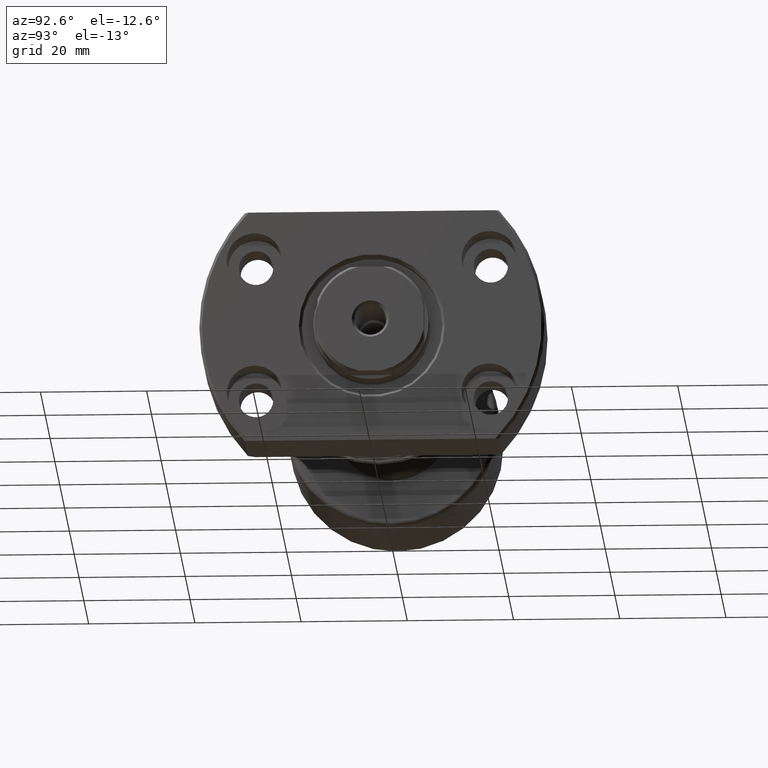
[diagram: clean part render]
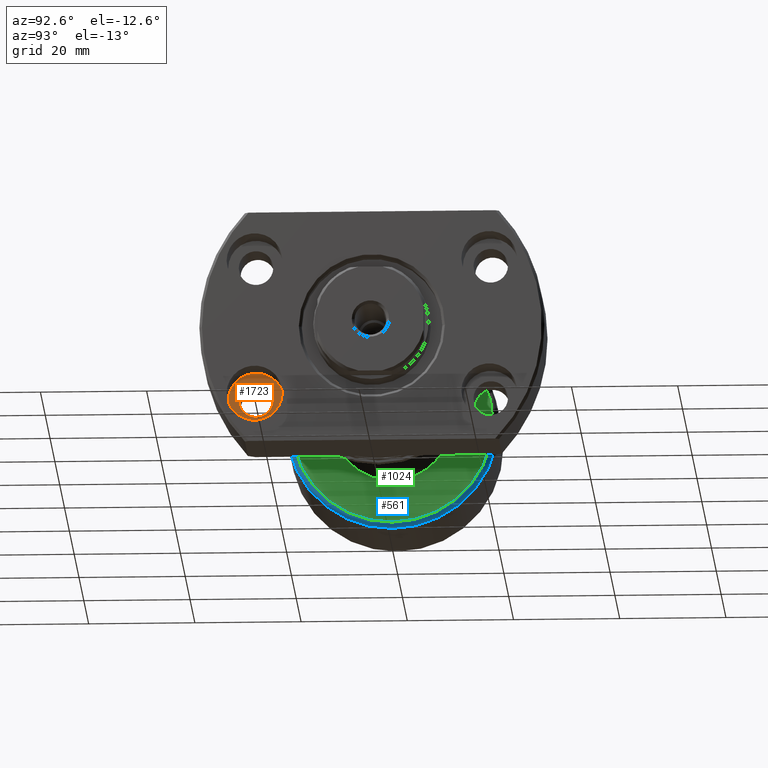
[diagram: same view with three faces highlighted in distinct colors, each labeled with its STEP entity id]
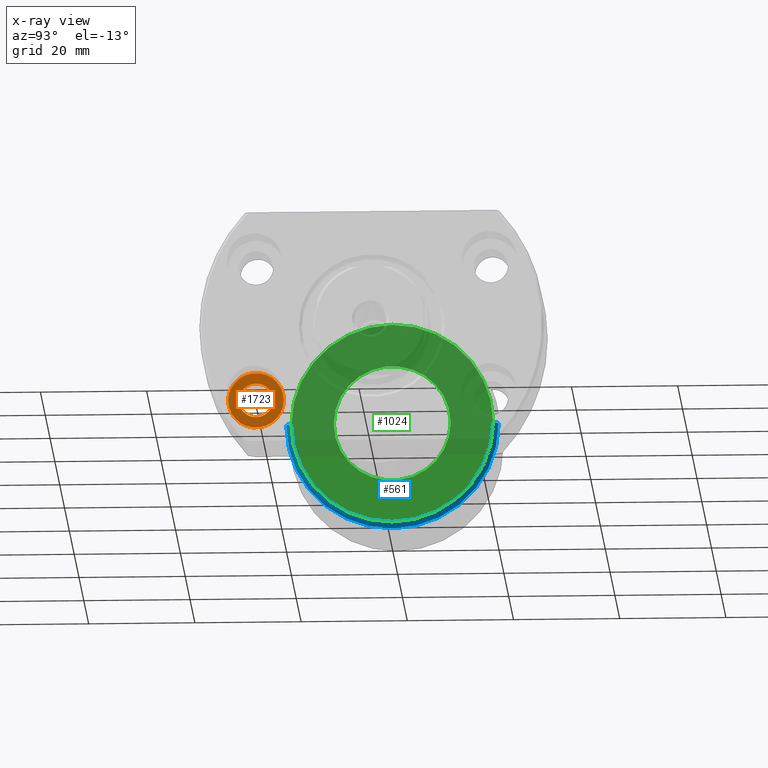
[diagram: x-ray of the same camera — body ghosted, the three highlighted faces saturated]
A machine part, auxiliary view with three faces highlighted in distinct colors.
The next image is the same camera in x-ray (body ghosted, the three faces saturated) — at least one of them is partly hidden behind the body in this view.
Their STEP definitions:

[orange] entity #1723 — the highlighted planar face has unit normal (1, -0, -0).
#208 = CARTESIAN_POINT ( 'NONE',  ( 24.99999999999936406, -22.10000000000072262, -12.75000000000000178 ) ) ;
#245 = AXIS2_PLACEMENT_3D ( 'NONE', #2807, #876, #1622 ) ;
#253 = CARTESIAN_POINT ( 'NONE',  ( 24.99999999999951683, -16.85000000000072262, -12.75000000000000178 ) ) ;
#309 = DIRECTION ( 'NONE',  ( 1.000000000000000000, -2.887798767815668620E-14, -6.310887241768094443E-30 ) ) ;
#383 = EDGE_LOOP ( 'NONE', ( #2757, #1163 ) ) ;
#399 = ORIENTED_EDGE ( 'NONE', *, *, #1300, .T. ) ;
#420 = AXIS2_PLACEMENT_3D ( 'NONE', #2275, #309, #550 ) ;
#435 = DIRECTION ( 'NONE',  ( 2.882309775469156694E-14, 1.000000000000000000, 0.000000000000000000 ) ) ;
#443 = CIRCLE ( 'NONE', #1700, 3.249999999999999556 ) ;
#536 = CIRCLE ( 'NONE', #2978, 3.249999999999999556 ) ;
#550 = DIRECTION ( 'NONE',  ( 2.907726969256361977E-14, 1.000000000000000000, 0.000000000000000000 ) ) ;
#585 = EDGE_CURVE ( 'NONE', #3020, #2067, #536, .T. ) ;
#718 = DIRECTION ( 'NONE',  ( 2.882309775469156694E-14, 1.000000000000000000, 0.000000000000000000 ) ) ;
#858 = ORIENTED_EDGE ( 'NONE', *, *, #2391, .T. ) ;
#876 = DIRECTION ( 'NONE',  ( 1.000000000000000000, -2.887798767815668620E-14, -6.310887241768094443E-30 ) ) ;
#1063 = CARTESIAN_POINT ( 'NONE',  ( 24.99999999999926814, -25.35000000000072262, -12.75000000000000178 ) ) ;
#1074 = EDGE_CURVE ( 'NONE', #2067, #3020, #443, .T. ) ;
#1163 = ORIENTED_EDGE ( 'NONE', *, *, #585, .F. ) ;
#1179 = CARTESIAN_POINT ( 'NONE',  ( 24.99999999999921130, -27.35000000000072617, -12.75000000000000178 ) ) ;
#1202 = VERTEX_POINT ( 'NONE', #1179 ) ;
#1260 = CIRCLE ( 'NONE', #420, 5.250000000000000888 ) ;
#1297 = CARTESIAN_POINT ( 'NONE',  ( 24.99999999999945643, -18.85000000000072262, -12.75000000000000178 ) ) ;
#1300 = EDGE_CURVE ( 'NONE', #2953, #1202, #2106, .T. ) ;
#1622 = DIRECTION ( 'NONE',  ( 2.887798767815668620E-14, 1.000000000000000000, 0.000000000000000000 ) ) ;
#1700 = AXIS2_PLACEMENT_3D ( 'NONE', #208, #2939, #718 ) ;
#1723 = ADVANCED_FACE ( 'NONE', ( #2971, #2735 ), #2493, .T. ) ;
#1955 = DIRECTION ( 'NONE',  ( 1.000000000000000000, -2.887798767815668620E-14, -6.310887241768094443E-30 ) ) ;
#2052 = DIRECTION ( 'NONE',  ( 1.000000000000000000, -2.887798767815668620E-14, -6.310887241768094443E-30 ) ) ;
#2058 = AXIS2_PLACEMENT_3D ( 'NONE', #3081, #2052, #3049 ) ;
#2067 = VERTEX_POINT ( 'NONE', #1297 ) ;
#2106 = CIRCLE ( 'NONE', #2058, 5.250000000000000888 ) ;
#2275 = CARTESIAN_POINT ( 'NONE',  ( 24.99999999999936406, -22.10000000000072262, -12.75000000000000178 ) ) ;
#2382 = EDGE_LOOP ( 'NONE', ( #399, #858 ) ) ;
#2391 = EDGE_CURVE ( 'NONE', #1202, #2953, #1260, .T. ) ;
#2493 = PLANE ( 'NONE',  #245 ) ;
#2645 = CARTESIAN_POINT ( 'NONE',  ( 24.99999999999936406, -22.10000000000072262, -12.75000000000000178 ) ) ;
#2735 = FACE_OUTER_BOUND ( 'NONE', #2382, .T. ) ;
#2757 = ORIENTED_EDGE ( 'NONE', *, *, #1074, .F. ) ;
#2807 = CARTESIAN_POINT ( 'NONE',  ( 25.00000000000000000, -7.220363146036227996E-13, -1.987929481156949750E-28 ) ) ;
#2939 = DIRECTION ( 'NONE',  ( 1.000000000000000000, -2.887798767815668620E-14, -6.310887241768094443E-30 ) ) ;
#2953 = VERTEX_POINT ( 'NONE', #253 ) ;
#2971 = FACE_BOUND ( 'NONE', #383, .T. ) ;
#2978 = AXIS2_PLACEMENT_3D ( 'NONE', #2645, #1955, #435 ) ;
#3020 = VERTEX_POINT ( 'NONE', #1063 ) ;
#3049 = DIRECTION ( 'NONE',  ( 2.907726969256361977E-14, 1.000000000000000000, 0.000000000000000000 ) ) ;
#3081 = CARTESIAN_POINT ( 'NONE',  ( 24.99999999999936406, -22.10000000000072262, -12.75000000000000178 ) ) ;

[blue] entity #561 — the highlighted toroidal blend (fillet) surface has major radius 19 mm and minor (blend) radius 1 mm.
#28 = CIRCLE ( 'NONE', #2680, 1.000000000000000888 ) ;
#62 = CIRCLE ( 'NONE', #487, 19.00000000000000000 ) ;
#155 = CIRCLE ( 'NONE', #2092, 20.00000000000000000 ) ;
#157 = VERTEX_POINT ( 'NONE', #2027 ) ;
#429 = VERTEX_POINT ( 'NONE', #2825 ) ;
#463 = DIRECTION ( 'NONE',  ( 0.000000000000000000, -1.000000000000000000, 0.000000000000000000 ) ) ;
#465 = DIRECTION ( 'NONE',  ( 1.069542322069065801E-17, -1.000000000000000000, 0.000000000000000000 ) ) ;
#487 = AXIS2_PLACEMENT_3D ( 'NONE', #2436, #2193, #463 ) ;
#492 = DIRECTION ( 'NONE',  ( 0.000000000000000000, 0.000000000000000000, -1.000000000000000000 ) ) ;
#522 = ORIENTED_EDGE ( 'NONE', *, *, #1802, .T. ) ;
#561 = ADVANCED_FACE ( 'NONE', ( #2891 ), #2310, .T. ) ;
#587 = CARTESIAN_POINT ( 'NONE',  ( 22.39999999999999503, -19.00000000000000000, 0.000000000000000000 ) ) ;
#636 = EDGE_LOOP ( 'NONE', ( #2317, #522, #1538, #2325 ) ) ;
#640 = DIRECTION ( 'NONE',  ( -1.000000000000000000, -1.069542322069065801E-17, -0.000000000000000000 ) ) ;
#669 = CARTESIAN_POINT ( 'NONE',  ( 21.39999999999999503, 19.00000000000000000, 2.326828918379970970E-15 ) ) ;
#673 = AXIS2_PLACEMENT_3D ( 'NONE', #669, #1671, #2332 ) ;
#723 = CARTESIAN_POINT ( 'NONE',  ( 21.39999999999999503, -19.00000000000000000, 0.000000000000000000 ) ) ;
#829 = CARTESIAN_POINT ( 'NONE',  ( 21.39999999999999503, 2.288820569227800311E-16, 0.000000000000000000 ) ) ;
#1204 = CARTESIAN_POINT ( 'NONE',  ( 21.39999999999999503, 0.000000000000000000, 0.000000000000000000 ) ) ;
#1435 = EDGE_CURVE ( 'NONE', #1568, #2920, #28, .T. ) ;
#1538 = ORIENTED_EDGE ( 'NONE', *, *, #1435, .T. ) ;
#1568 = VERTEX_POINT ( 'NONE', #587 ) ;
#1671 = DIRECTION ( 'NONE',  ( 1.309811581274509052E-33, -1.224646799147353207E-16, 1.000000000000000000 ) ) ;
#1802 = EDGE_CURVE ( 'NONE', #429, #1568, #62, .T. ) ;
#1898 = AXIS2_PLACEMENT_3D ( 'NONE', #1204, #640, #465 ) ;
#1967 = EDGE_CURVE ( 'NONE', #429, #157, #2082, .T. ) ;
#2027 = CARTESIAN_POINT ( 'NONE',  ( 21.39999999999999503, 20.00000000000000000, 2.449293598294706513E-15 ) ) ;
#2082 = CIRCLE ( 'NONE', #673, 1.000000000000000888 ) ;
#2092 = AXIS2_PLACEMENT_3D ( 'NONE', #829, #2628, #3130 ) ;
#2193 = DIRECTION ( 'NONE',  ( -1.000000000000000000, -1.069542322069065801E-17, -0.000000000000000000 ) ) ;
#2310 = TOROIDAL_SURFACE ( 'NONE', #1898, 19.00000000000000000, 1.000000000000000888 ) ;
#2317 = ORIENTED_EDGE ( 'NONE', *, *, #1967, .F. ) ;
#2325 = ORIENTED_EDGE ( 'NONE', *, *, #3091, .F. ) ;
#2332 = DIRECTION ( 'NONE',  ( 0.000000000000000000, -1.000000000000000000, -1.224646799147353454E-16 ) ) ;
#2436 = CARTESIAN_POINT ( 'NONE',  ( 22.39999999999999503, 2.395774801434707246E-16, 0.000000000000000000 ) ) ;
#2463 = CARTESIAN_POINT ( 'NONE',  ( 21.39999999999999503, -20.00000000000000000, 0.000000000000000000 ) ) ;
#2628 = DIRECTION ( 'NONE',  ( -1.000000000000000000, -1.069542322069065801E-17, -0.000000000000000000 ) ) ;
#2680 = AXIS2_PLACEMENT_3D ( 'NONE', #723, #492, #2930 ) ;
#2825 = CARTESIAN_POINT ( 'NONE',  ( 22.39999999999999503, 19.00000000000000000, 2.388061258337338939E-15 ) ) ;
#2891 = FACE_OUTER_BOUND ( 'NONE', #636, .T. ) ;
#2920 = VERTEX_POINT ( 'NONE', #2463 ) ;
#2930 = DIRECTION ( 'NONE',  ( -1.000000000000000000, 0.000000000000000000, 0.000000000000000000 ) ) ;
#3091 = EDGE_CURVE ( 'NONE', #157, #2920, #155, .T. ) ;
#3130 = DIRECTION ( 'NONE',  ( 0.000000000000000000, -1.000000000000000000, 0.000000000000000000 ) ) ;

[green] entity #1024 — the highlighted planar face has unit normal (-1, -0, 0).
#62 = CIRCLE ( 'NONE', #487, 19.00000000000000000 ) ;
#109 = CARTESIAN_POINT ( 'NONE',  ( 22.39999999999999503, 2.395774801434707246E-16, 0.000000000000000000 ) ) ;
#206 = CARTESIAN_POINT ( 'NONE',  ( 22.39999999999999503, 11.00000000000000000, 1.347111479062094321E-15 ) ) ;
#238 = DIRECTION ( 'NONE',  ( -1.000000000000000000, -1.069542322069065801E-17, -0.000000000000000000 ) ) ;
#329 = EDGE_CURVE ( 'NONE', #2778, #3160, #857, .T. ) ;
#404 = CARTESIAN_POINT ( 'NONE',  ( 22.39999999999999503, -11.00000000000000000, 0.000000000000000000 ) ) ;
#429 = VERTEX_POINT ( 'NONE', #2825 ) ;
#463 = DIRECTION ( 'NONE',  ( 0.000000000000000000, -1.000000000000000000, 0.000000000000000000 ) ) ;
#487 = AXIS2_PLACEMENT_3D ( 'NONE', #2436, #2193, #463 ) ;
#587 = CARTESIAN_POINT ( 'NONE',  ( 22.39999999999999503, -19.00000000000000000, 0.000000000000000000 ) ) ;
#624 = EDGE_CURVE ( 'NONE', #1568, #429, #1851, .T. ) ;
#641 = AXIS2_PLACEMENT_3D ( 'NONE', #1890, #2874, #1137 ) ;
#663 = EDGE_CURVE ( 'NONE', #3160, #2778, #2472, .T. ) ;
#700 = AXIS2_PLACEMENT_3D ( 'NONE', #2938, #1152, #3132 ) ;
#727 = ORIENTED_EDGE ( 'NONE', *, *, #663, .T. ) ;
#762 = AXIS2_PLACEMENT_3D ( 'NONE', #1819, #2007, #2548 ) ;
#857 = CIRCLE ( 'NONE', #2055, 11.00000000000000000 ) ;
#900 = ORIENTED_EDGE ( 'NONE', *, *, #624, .F. ) ;
#1024 = ADVANCED_FACE ( 'NONE', ( #2783, #1076 ), #1543, .F. ) ;
#1076 = FACE_BOUND ( 'NONE', #2576, .T. ) ;
#1137 = DIRECTION ( 'NONE',  ( 0.000000000000000000, -1.000000000000000000, 0.000000000000000000 ) ) ;
#1152 = DIRECTION ( 'NONE',  ( -1.000000000000000000, -1.069542322069065801E-17, -0.000000000000000000 ) ) ;
#1233 = DIRECTION ( 'NONE',  ( 0.000000000000000000, -1.000000000000000000, 0.000000000000000000 ) ) ;
#1236 = ORIENTED_EDGE ( 'NONE', *, *, #1802, .F. ) ;
#1467 = EDGE_LOOP ( 'NONE', ( #900, #1236 ) ) ;
#1543 = PLANE ( 'NONE',  #762 ) ;
#1568 = VERTEX_POINT ( 'NONE', #587 ) ;
#1802 = EDGE_CURVE ( 'NONE', #429, #1568, #62, .T. ) ;
#1819 = CARTESIAN_POINT ( 'NONE',  ( 22.39999999999999503, -11.00000000000000000, 0.000000000000000000 ) ) ;
#1826 = ORIENTED_EDGE ( 'NONE', *, *, #329, .T. ) ;
#1851 = CIRCLE ( 'NONE', #700, 19.00000000000000000 ) ;
#1890 = CARTESIAN_POINT ( 'NONE',  ( 22.39999999999999503, 2.395774801434707246E-16, 0.000000000000000000 ) ) ;
#2007 = DIRECTION ( 'NONE',  ( -1.000000000000000000, -1.069542322069065801E-17, 0.000000000000000000 ) ) ;
#2055 = AXIS2_PLACEMENT_3D ( 'NONE', #109, #238, #1233 ) ;
#2193 = DIRECTION ( 'NONE',  ( -1.000000000000000000, -1.069542322069065801E-17, -0.000000000000000000 ) ) ;
#2436 = CARTESIAN_POINT ( 'NONE',  ( 22.39999999999999503, 2.395774801434707246E-16, 0.000000000000000000 ) ) ;
#2472 = CIRCLE ( 'NONE', #641, 11.00000000000000000 ) ;
#2548 = DIRECTION ( 'NONE',  ( 1.069542322069065801E-17, -1.000000000000000000, 0.000000000000000000 ) ) ;
#2576 = EDGE_LOOP ( 'NONE', ( #1826, #727 ) ) ;
#2778 = VERTEX_POINT ( 'NONE', #404 ) ;
#2783 = FACE_OUTER_BOUND ( 'NONE', #1467, .T. ) ;
#2825 = CARTESIAN_POINT ( 'NONE',  ( 22.39999999999999503, 19.00000000000000000, 2.388061258337338939E-15 ) ) ;
#2874 = DIRECTION ( 'NONE',  ( -1.000000000000000000, -1.069542322069065801E-17, -0.000000000000000000 ) ) ;
#2938 = CARTESIAN_POINT ( 'NONE',  ( 22.39999999999999503, 2.395774801434707246E-16, 0.000000000000000000 ) ) ;
#3132 = DIRECTION ( 'NONE',  ( 0.000000000000000000, -1.000000000000000000, 0.000000000000000000 ) ) ;
#3160 = VERTEX_POINT ( 'NONE', #206 ) ;